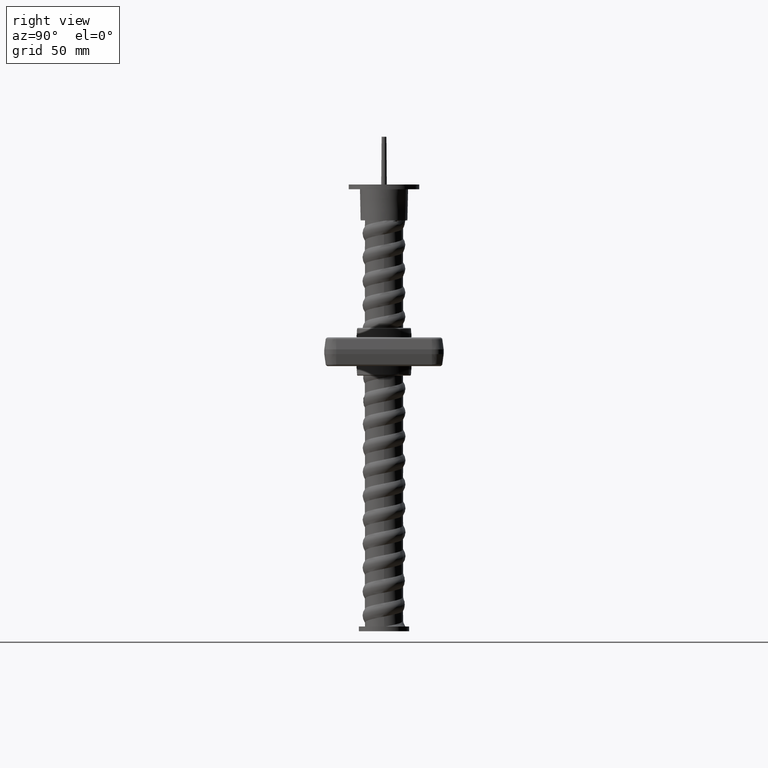
[diagram: clean part render]
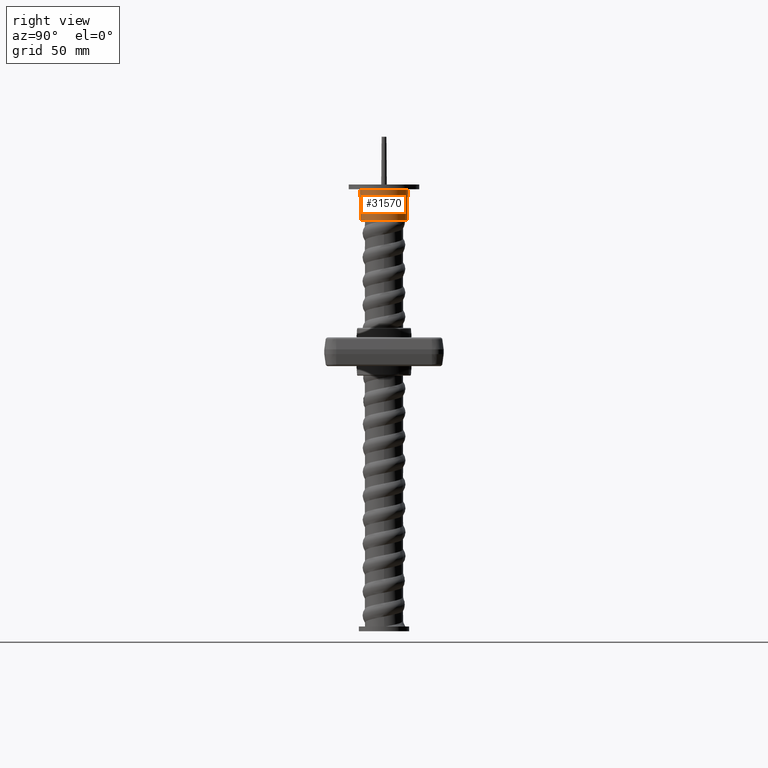
[diagram: same view with one face highlighted and labeled with its STEP entity id]
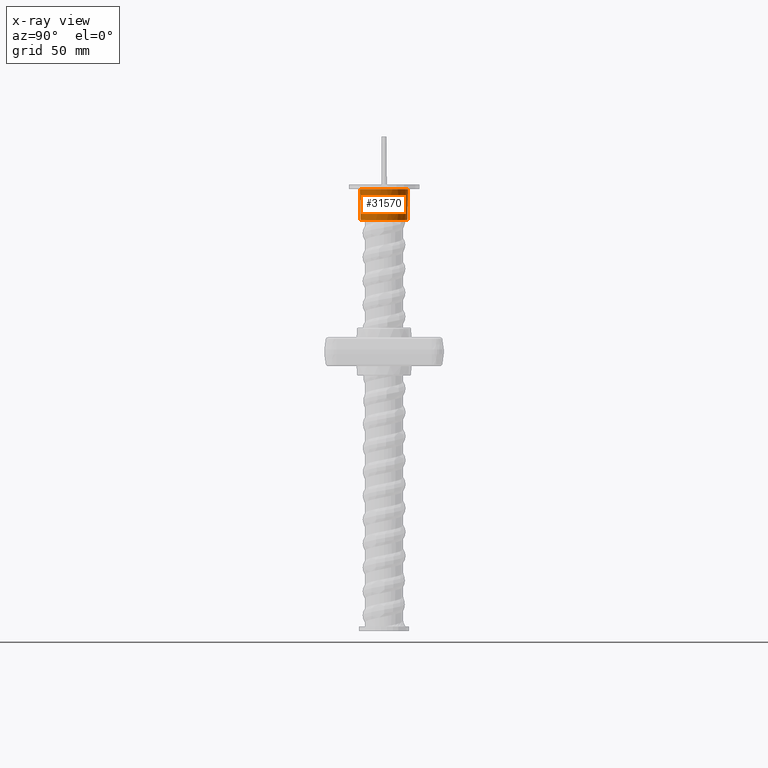
[diagram: x-ray of the same camera — body ghosted, the highlighted face saturated]
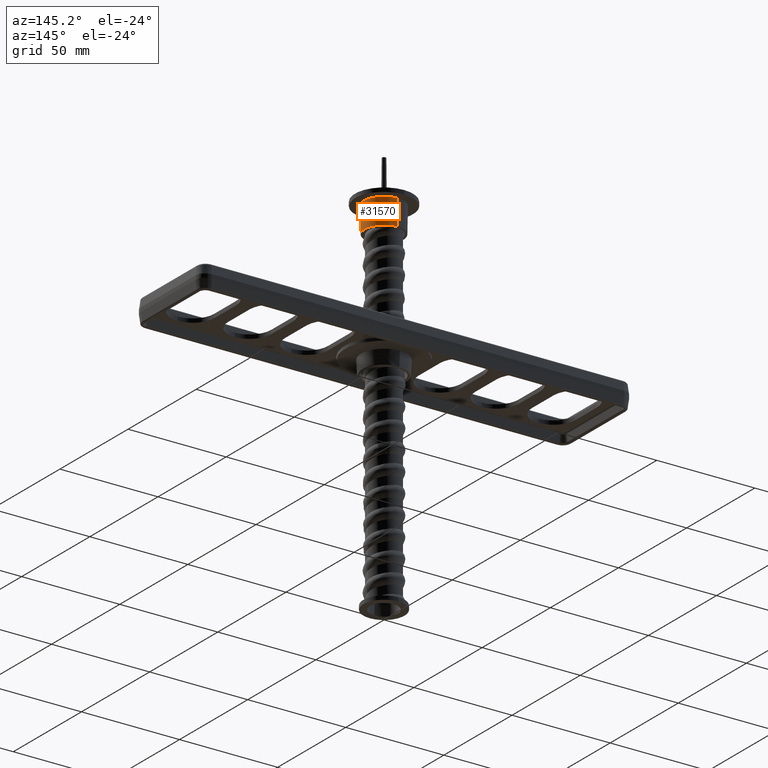
[diagram: same view with one face highlighted and labeled with its STEP entity id]
A machine part, right view. The second image highlights one B-rep face of the part: STEP entity #31570.
The next image is the same camera in x-ray: the body ghosted, the highlighted face saturated — about 0% of this face is hidden behind the body in this view.
A second angle (auxiliary view) of the same face is appended — the face is thin or edge-on in the first view.
In plain terms, the highlighted conical surface has half-angle 1.146 deg.
Its self-contained STEP definition (entity closure, byte-faithful):
#558 = DIRECTION ( 'NONE',  ( 1.848892746611740945E-32, -1.000000000000000000, -2.465190328815648755E-32 ) ) ;
#589 = DIRECTION ( 'NONE',  ( -1.848892746611740945E-32, 1.000000000000000000, 2.465190328815648755E-32 ) ) ;
#2881 = CIRCLE ( 'NONE', #5749, 10.05999999999999517 ) ;
#4190 = CIRCLE ( 'NONE', #17838, 9.800000000000000711 ) ;
#5663 = LINE ( 'NONE', #14044, #39319 ) ;
#5749 = AXIS2_PLACEMENT_3D ( 'NONE', #9785, #32604, #13066 ) ;
#6772 = CARTESIAN_POINT ( 'NONE',  ( -2.403560570595255456E-31, 27.99999999999998224, 10.05999999999999339 ) ) ;
#9785 = CARTESIAN_POINT ( 'NONE',  ( -1.540743955509788332E-30, 27.99999999999998224, 1.540743955509787281E-30 ) ) ;
#13066 = DIRECTION ( 'NONE',  ( 0.0000000000000000000, 0.0000000000000000000, -1.000000000000000000 ) ) ;
#13726 = CARTESIAN_POINT ( 'NONE',  ( 0.0000000000000000000, 15.00000000000002665, 0.0000000000000000000 ) ) ;
#13862 = VERTEX_POINT ( 'NONE', #41842 ) ;
#14044 = CARTESIAN_POINT ( 'NONE',  ( 1.200153863164406345E-15, 15.00000000000002665, -9.800000000000000711 ) ) ;
#14125 = CARTESIAN_POINT ( 'NONE',  ( 1.231994679942236324E-15, 27.99999999999998224, -10.05999999999999339 ) ) ;
#14217 = EDGE_CURVE ( 'NONE', #36213, #39216, #2881, .T. ) ;
#14895 = DIRECTION ( 'NONE',  ( 2.448803886483608681E-18, 0.9998000599800070942, -0.01999600119959958969 ) ) ;
#17838 = AXIS2_PLACEMENT_3D ( 'NONE', #20112, #558, #23391 ) ;
#20112 = CARTESIAN_POINT ( 'NONE',  ( 0.0000000000000000000, 15.00000000000002665, 0.0000000000000000000 ) ) ;
#21717 = CONICAL_SURFACE ( 'NONE', #27058, 9.800000000000000711, 0.01999733397314997982 ) ;
#22732 = FACE_OUTER_BOUND ( 'NONE', #27345, .T. ) ;
#23391 = DIRECTION ( 'NONE',  ( 1.276204305030111554E-62, 0.0000000000000000000, -1.000000000000000000 ) ) ;
#24722 = LINE ( 'NONE', #28103, #31356 ) ;
#25044 = VERTEX_POINT ( 'NONE', #31729 ) ;
#26756 = ORIENTED_EDGE ( 'NONE', *, *, #42191, .F. ) ;
#27058 = AXIS2_PLACEMENT_3D ( 'NONE', #13726, #589, #29969 ) ;
#27345 = EDGE_LOOP ( 'NONE', ( #26756, #36229, #33698, #42112 ) ) ;
#28103 = CARTESIAN_POINT ( 'NONE',  ( -1.250680218929509327E-61, 15.00000000000002665, 9.800000000000000711 ) ) ;
#29969 = DIRECTION ( 'NONE',  ( -1.276204305030111554E-62, 0.0000000000000000000, 1.000000000000000000 ) ) ;
#31356 = VECTOR ( 'NONE', #37923, 999.9999999999998863 ) ;
#31570 = ADVANCED_FACE ( 'NONE', ( #22732 ), #21717, .T. ) ;
#31729 = CARTESIAN_POINT ( 'NONE',  ( -1.201780285297627509E-31, 15.00000000000002665, 9.800000000000000711 ) ) ;
#32604 = DIRECTION ( 'NONE',  ( 1.848892746611740945E-32, -1.000000000000000000, -2.465190328815648755E-32 ) ) ;
#33698 = ORIENTED_EDGE ( 'NONE', *, *, #33818, .T. ) ;
#33818 = EDGE_CURVE ( 'NONE', #25044, #36213, #24722, .T. ) ;
#36213 = VERTEX_POINT ( 'NONE', #6772 ) ;
#36229 = ORIENTED_EDGE ( 'NONE', *, *, #38949, .F. ) ;
#37923 = DIRECTION ( 'NONE',  ( -1.848523078959018586E-32, 0.9998000599800070942, 0.01999600119959958969 ) ) ;
#38949 = EDGE_CURVE ( 'NONE', #25044, #13862, #4190, .T. ) ;
#39216 = VERTEX_POINT ( 'NONE', #14125 ) ;
#39319 = VECTOR ( 'NONE', #14895, 999.9999999999998863 ) ;
#41842 = CARTESIAN_POINT ( 'NONE',  ( 1.216074271553321236E-15, 15.00000000000002665, -9.800000000000000711 ) ) ;
#42112 = ORIENTED_EDGE ( 'NONE', *, *, #14217, .T. ) ;
#42191 = EDGE_CURVE ( 'NONE', #13862, #39216, #5663, .T. ) ;